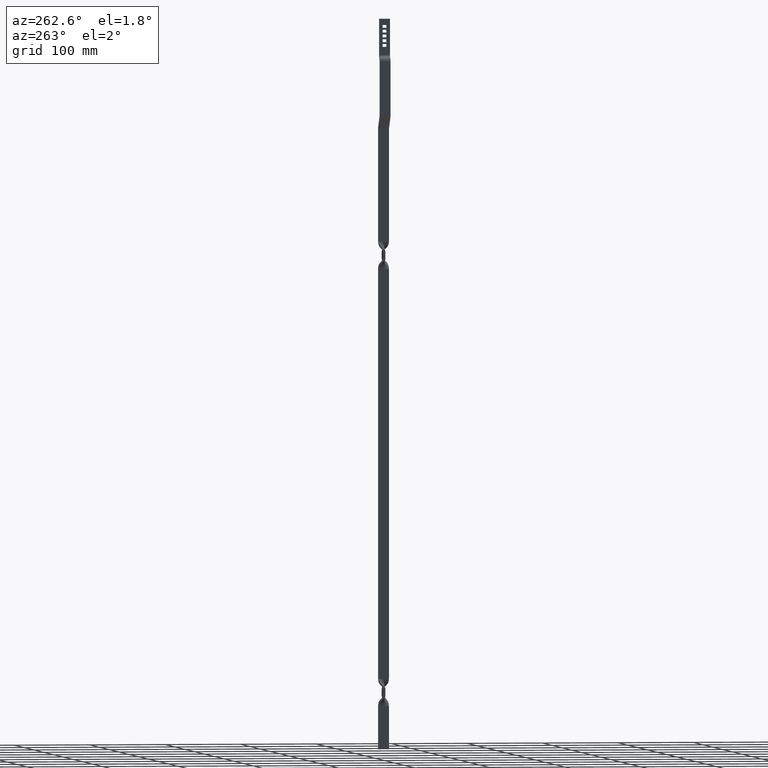
[diagram: clean part render]
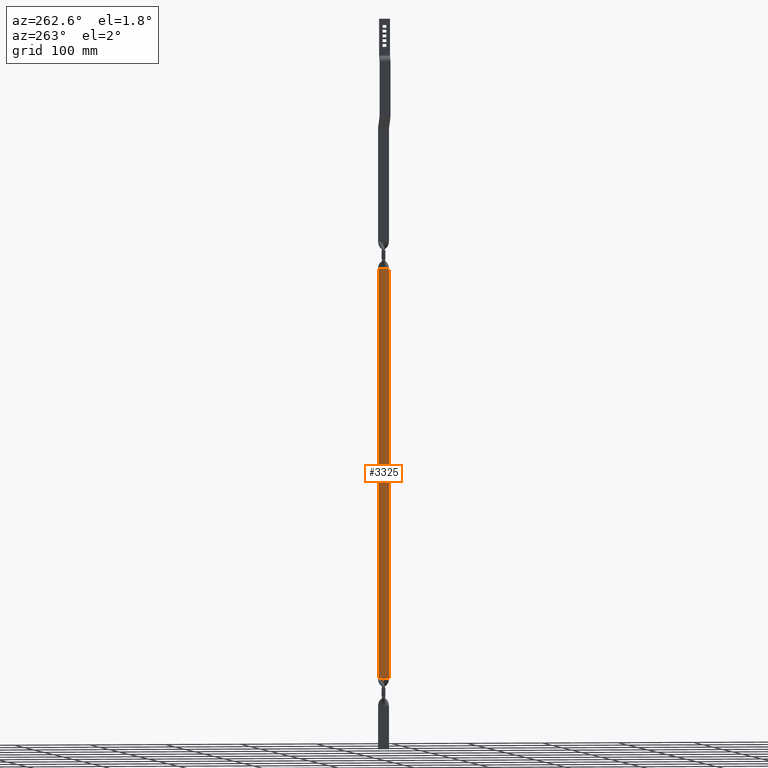
[diagram: same view with one face highlighted and labeled with its STEP entity id]
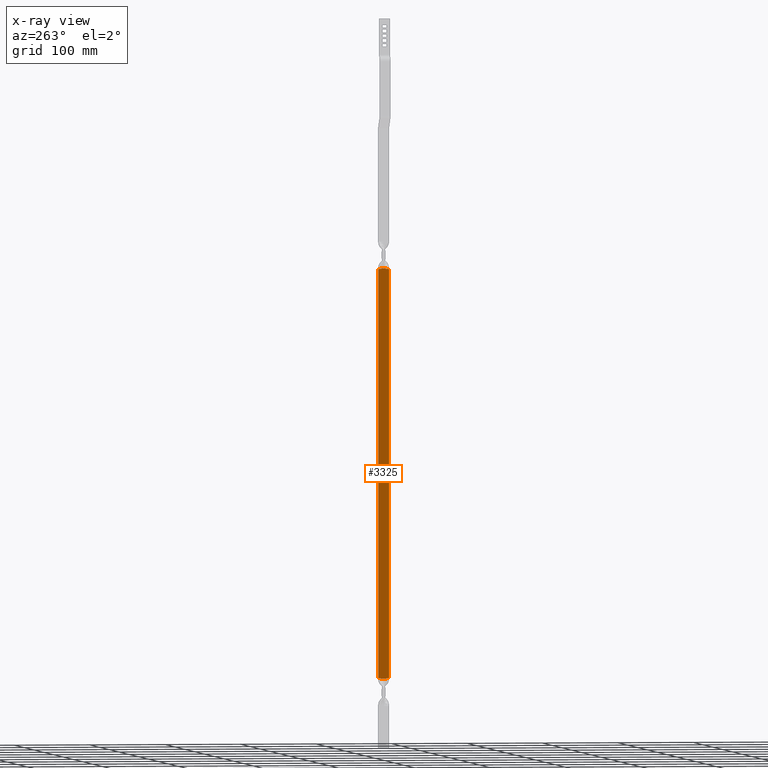
[diagram: x-ray of the same camera — body ghosted, the highlighted face saturated]
A machine part, auxiliary view. The second image highlights one B-rep face of the part: STEP entity #3325.
The next image is the same camera in x-ray: the body ghosted, the highlighted face saturated — about 0% of this face is hidden behind the body in this view.
In plain terms, the highlighted face is a freeform B-spline surface patch.
Its self-contained STEP definition (entity closure, byte-faithful):
#82=CARTESIAN_POINT('',(10.500000000114801,0.271775746040870,-858.499999999853910));
#83=VERTEX_POINT('',#82);
#116=CARTESIAN_POINT('',(10.499999999008400,7.0,-857.313138851832040));
#117=VERTEX_POINT('',#116);
#118=CARTESIAN_POINT('',(10.499999999008400,7.0,-857.313138851832040));
#119=CARTESIAN_POINT('',(10.499999999008400,6.434663200717792,-857.383037043842820));
#120=CARTESIAN_POINT('',(10.499999999008500,5.870319582463360,-857.459521503976700));
#121=CARTESIAN_POINT('',(10.499999999008500,4.743986133300802,-857.628099536921010));
#122=CARTESIAN_POINT('',(10.499999999008530,4.182009287864615,-857.720279222733320));
#123=CARTESIAN_POINT('',(10.499999999008530,3.060560236040673,-857.921248078293050));
#124=CARTESIAN_POINT('',(10.499999999008390,2.501421362212928,-858.030178084032510));
#125=CARTESIAN_POINT('',(10.499999999008390,1.385487364078988,-858.259859970322050));
#126=CARTESIAN_POINT('',(10.499999999008400,0.828537851383328,-858.380513754365320));
#127=CARTESIAN_POINT('',(10.500000000114801,0.271775746040870,-858.499999999853910));
#128=B_SPLINE_CURVE_WITH_KNOTS('',3,(#118,#119,#120,#121,#122,#123,#124,#125,#126,#127),.UNSPECIFIED.,.F.,.U.,(4,2,2,2,4),(0.0,0.250000000000000,0.500000000000000,0.750000000000000,1.0),.UNSPECIFIED.);
#129=EDGE_CURVE('',#117,#83,#128,.T.);
#194=CARTESIAN_POINT('',(10.499999999008400,-7.0,-857.289823195400000));
#195=VERTEX_POINT('',#194);
#209=CARTESIAN_POINT('',(10.500000000114801,0.271775746040870,-858.499999999853910));
#210=CARTESIAN_POINT('',(10.499999999008400,-0.331125421027556,-858.381840445603190));
#211=CARTESIAN_POINT('',(10.499999999008351,-0.934187228391759,-858.262608892116530));
#212=CARTESIAN_POINT('',(10.499999999008359,-2.141573673938438,-858.032512668204840));
#213=CARTESIAN_POINT('',(10.499999999008271,-2.746067614053868,-857.921779648507140));
#214=CARTESIAN_POINT('',(10.499999999008271,-3.957689163754748,-857.715155313386390));
#215=CARTESIAN_POINT('',(10.499999999008731,-4.564574697635020,-857.619239175962890));
#216=CARTESIAN_POINT('',(10.499999999008731,-5.780642736340758,-857.443213668824000));
#217=CARTESIAN_POINT('',(10.499999999008400,-6.389812878324920,-857.363019223343600));
#218=CARTESIAN_POINT('',(10.499999999008400,-7.0,-857.289823195400000));
#219=B_SPLINE_CURVE_WITH_KNOTS('',3,(#209,#210,#211,#212,#213,#214,#215,#216,#217,#218),.UNSPECIFIED.,.F.,.U.,(4,2,2,2,4),(0.0,0.250000000000000,0.500000000000000,0.750000000000000,1.0),.UNSPECIFIED.);
#220=EDGE_CURVE('',#83,#195,#219,.T.);
#1559=CARTESIAN_POINT('',(10.500000000000240,0.271775746012079,-318.499999999980500));
#1560=VERTEX_POINT('',#1559);
#1561=CARTESIAN_POINT('',(10.499999999008359,7.0,-319.686861147044510));
#1562=VERTEX_POINT('',#1561);
#1563=CARTESIAN_POINT('',(10.500000000000240,0.271775746012079,-318.499999999980500));
#1564=CARTESIAN_POINT('',(10.499999999008359,0.828539369256001,-318.619479172844710));
#1565=CARTESIAN_POINT('',(10.499999999008390,1.385487364169330,-318.740140024592900));
#1566=CARTESIAN_POINT('',(10.499999999008390,2.501421361954630,-318.969821913277600));
#1567=CARTESIAN_POINT('',(10.499999999008450,3.060560235788837,-319.078751919320210));
#1568=CARTESIAN_POINT('',(10.499999999008450,4.182009287638877,-319.279720775495210));
#1569=CARTESIAN_POINT('',(10.499999999008439,4.743986133110116,-319.371900461483900));
#1570=CARTESIAN_POINT('',(10.499999999008439,5.870319582357369,-319.540478494714310));
#1571=CARTESIAN_POINT('',(10.499999999008359,6.434663200662631,-319.616962954950110));
#1572=CARTESIAN_POINT('',(10.499999999008359,7.0,-319.686861147045020));
#1573=B_SPLINE_CURVE_WITH_KNOTS('',3,(#1563,#1564,#1565,#1566,#1567,#1568,#1569,#1570,#1571,#1572),.UNSPECIFIED.,.F.,.U.,(4,2,2,2,4),(0.0,0.250000000000000,0.500000000000000,0.750000000000000,1.0),.UNSPECIFIED.);
#1574=EDGE_CURVE('',#1560,#1562,#1573,.T.);
#1707=CARTESIAN_POINT('',(10.499999999008359,-7.0,-319.710176805464980));
#1708=VERTEX_POINT('',#1707);
#1709=CARTESIAN_POINT('',(10.499999999008359,-7.0,-319.710176805464980));
#1710=CARTESIAN_POINT('',(10.499999999008359,-6.389812878379974,-319.636980777614380));
#1711=CARTESIAN_POINT('',(10.499999999008400,-5.780642736446188,-319.556786332246820));
#1712=CARTESIAN_POINT('',(10.499999999008400,-4.564574697822346,-319.380760825428520));
#1713=CARTESIAN_POINT('',(10.499999999008431,-3.957689163974943,-319.284844688203690));
#1714=CARTESIAN_POINT('',(10.499999999008439,-2.746067614292162,-319.078220353782510));
#1715=CARTESIAN_POINT('',(10.499999999008359,-2.141573674178812,-318.967487334433490));
#1716=CARTESIAN_POINT('',(10.499999999008359,-0.934187228257385,-318.737391113240110));
#1717=CARTESIAN_POINT('',(10.499999999008301,-0.331122996833548,-318.618171922540230));
#1718=CARTESIAN_POINT('',(10.500000000000240,0.271775746012079,-318.499999999980500));
#1719=B_SPLINE_CURVE_WITH_KNOTS('',3,(#1709,#1710,#1711,#1712,#1713,#1714,#1715,#1716,#1717,#1718),.UNSPECIFIED.,.F.,.U.,(4,2,2,2,4),(0.0,0.250000000000000,0.500000000000000,0.750000000000000,1.0),.UNSPECIFIED.);
#1720=EDGE_CURVE('',#1708,#1560,#1719,.T.);
#3255=CARTESIAN_POINT('',(10.499999999008400,7.0,-857.313138851832040));
#3256=CARTESIAN_POINT('',(10.499999999008359,7.0,-319.686861147044510));
#3257=QUASI_UNIFORM_CURVE('',1,(#3255,#3256),.UNSPECIFIED.,.F.,.U.);
#3258=EDGE_CURVE('',#117,#1562,#3257,.T.);
#3275=CARTESIAN_POINT('',(10.499999999008400,-7.0,-857.289823195400000));
#3276=CARTESIAN_POINT('',(10.499999999008359,-7.0,-319.710176805464980));
#3277=QUASI_UNIFORM_CURVE('',1,(#3275,#3276),.UNSPECIFIED.,.F.,.U.);
#3278=EDGE_CURVE('',#195,#1708,#3277,.T.);
#3312=CARTESIAN_POINT('',(10.499999999008400,-7.699299972865286,-885.472998953222940));
#3313=CARTESIAN_POINT('',(10.499999999008400,-7.699299972865286,-291.526986562682910));
#3314=CARTESIAN_POINT('',(10.499999999008400,7.699300348374547,-885.472998953222940));
#3315=CARTESIAN_POINT('',(10.499999999008400,7.699300348374547,-291.526986562682910));
#3316=B_SPLINE_SURFACE_WITH_KNOTS('',1,1,((#3312,#3314),(#3313,#3315)),.UNSPECIFIED.,.F.,.F.,.U.,(2,2),(2,2),(0.0,593.946012390540090),(0.0,15.398600321239829),.UNSPECIFIED.);
#3317=ORIENTED_EDGE('',*,*,#3258,.F.);
#3318=ORIENTED_EDGE('',*,*,#129,.T.);
#3319=ORIENTED_EDGE('',*,*,#220,.T.);
#3320=ORIENTED_EDGE('',*,*,#3278,.T.);
#3321=ORIENTED_EDGE('',*,*,#1720,.T.);
#3322=ORIENTED_EDGE('',*,*,#1574,.T.);
#3323=EDGE_LOOP('',(#3317,#3318,#3319,#3320,#3321,#3322));
#3324=FACE_OUTER_BOUND('',#3323,.T.);
#3325=ADVANCED_FACE('',(#3324),#3316,.T.);